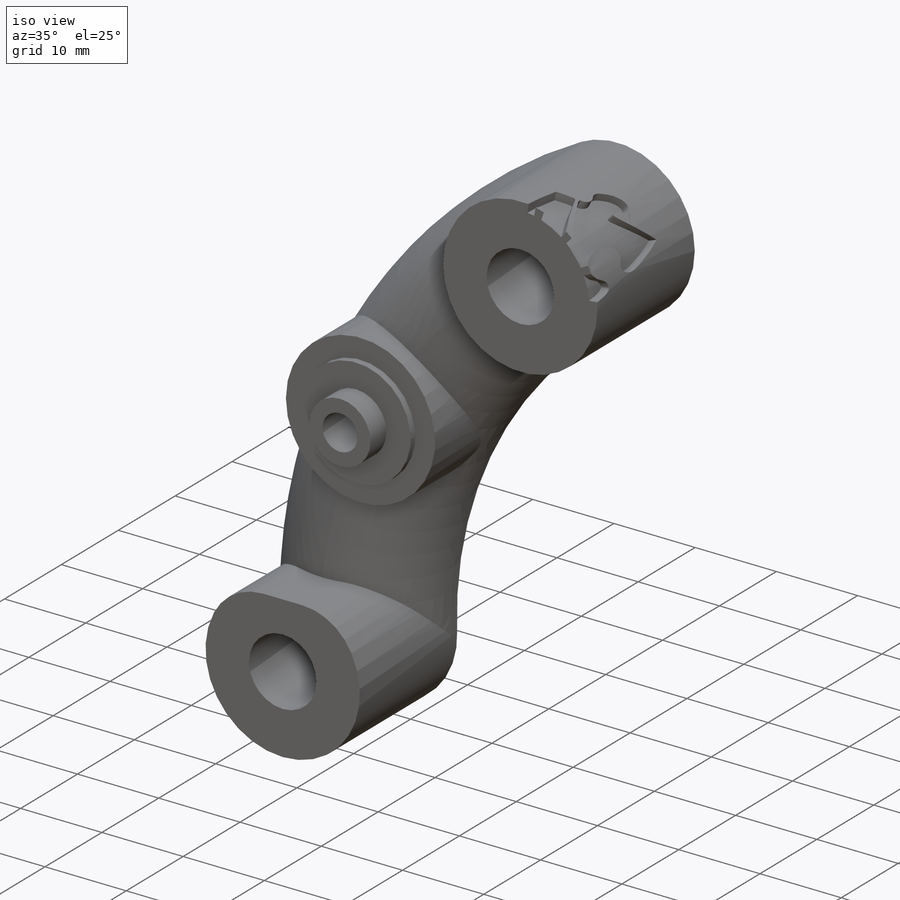
[diagram: iso view]
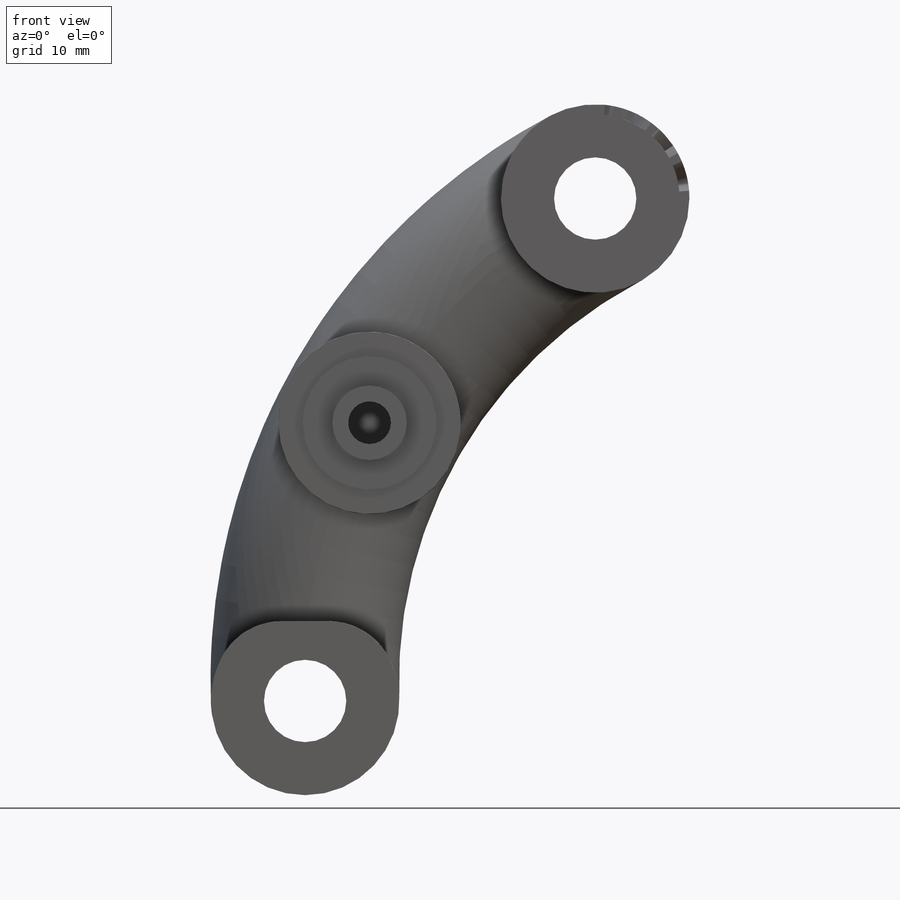
[diagram: front view]
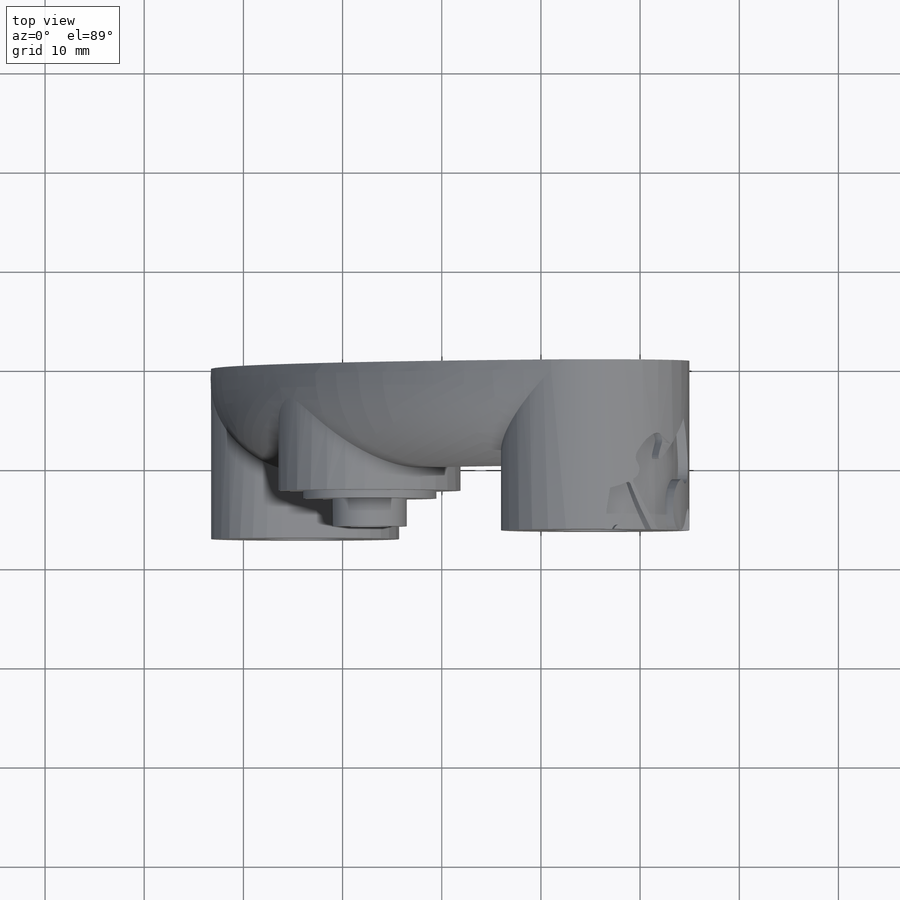
[diagram: top view]
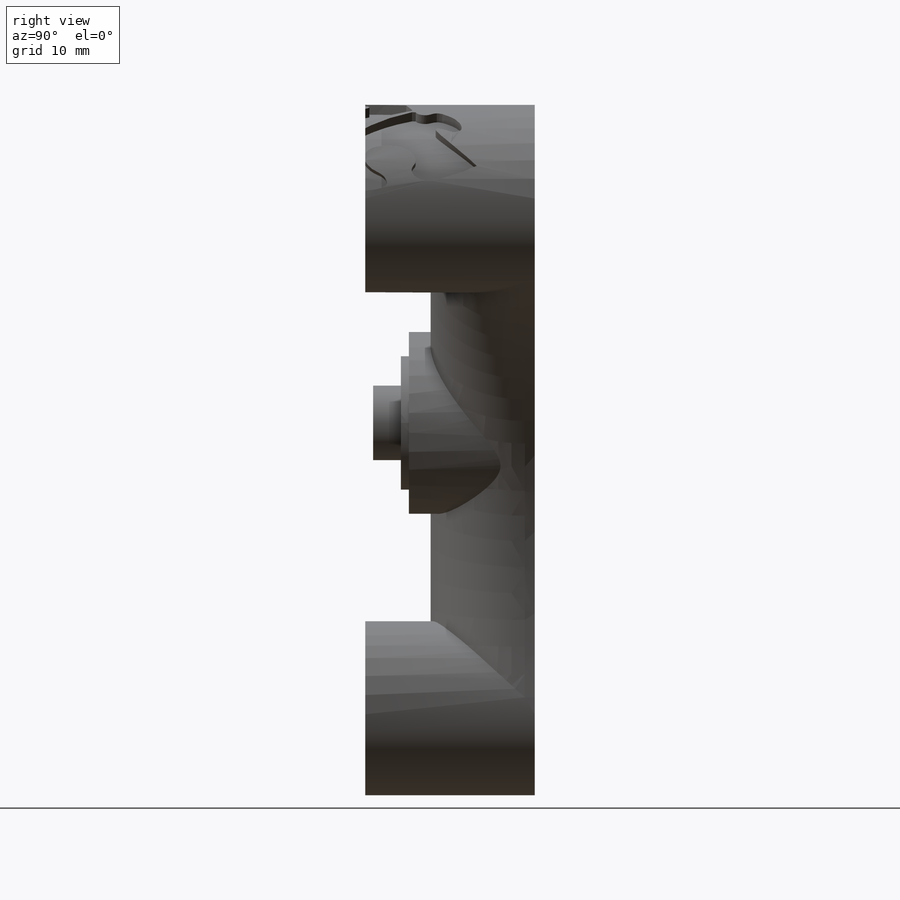
[diagram: right view]
SOLIDWORKS PART (.sldprt)
format: sldprt  version: not decoded by parser v0  size: 526,336 bytes
history: native  units: mm
features: sketch x12, extrude x8, cut_extrude x2, material x1, fillet x1, plane x1 (+11 scaffold rows collapsed)
feature tree (36):
  scaffold x11  (default folders/planes/origin — collapsed)
  material  "Material <not specified>"
  sketch  "Sketch1"  dims[D1=~28.040035mm]
  extrude  "Boss-Extrude2"  Depth=10.5mm
  sketch  "Sketch4"  dims[D1=20.0mm]
  extrude  "Boss-Extrude3"  Depth=6.6mm
  sketch  "Sketch5"  dims[D1=~5.06759mm]
  extrude  "Boss-Extrude4"  Depth=2.2mm
  fillet  "Fillet3"  Radius=9.5mm
  sketch  "Sketch6"  dims[D1=~5.103949mm]
  extrude  "Boss-Extrude5"  Depth=0.8mm
  sketch  "Sketch7"  dims[D1=~3.946397mm]
  extrude  "Boss-Extrude6"  Depth=2.8mm
  sketch  "Sketch8"  dims[D1=3.7mm]
  cut_extrude  "Cut-Extrude2"  Depth=4.2mm
  sketch  "Sketch9"
  extrude  "Boss-Extrude7"  Depth=0.68mm
  sketch  "Sketch10"  dims[D1=0.44mm D2=0.88mm]
  extrude  "Boss-Extrude8"  [1 undecoded]
  plane  "Plane1"
  sketch  "Sketch11"
  sketch  "Sketch19"  dims[D1=0.0mm D2=0.0mm]
  sketch  "Sketch17"  dims[D1=0.0mm]
  extrude  "Boss-Extrude10"  Depth=1mm
  sketch  "Sketch18"  dims[D1=0.0mm]
  cut_extrude  "Cut-Extrude3"  Depth=1mm
decode coverage: 20 of 23 modeling features carry decoded parameters
note: ~ marks probable driven/reference dimensions
note: 1 parameter value undecoded
note: suppression state not decoded; provenance and decode notes live in map.json
